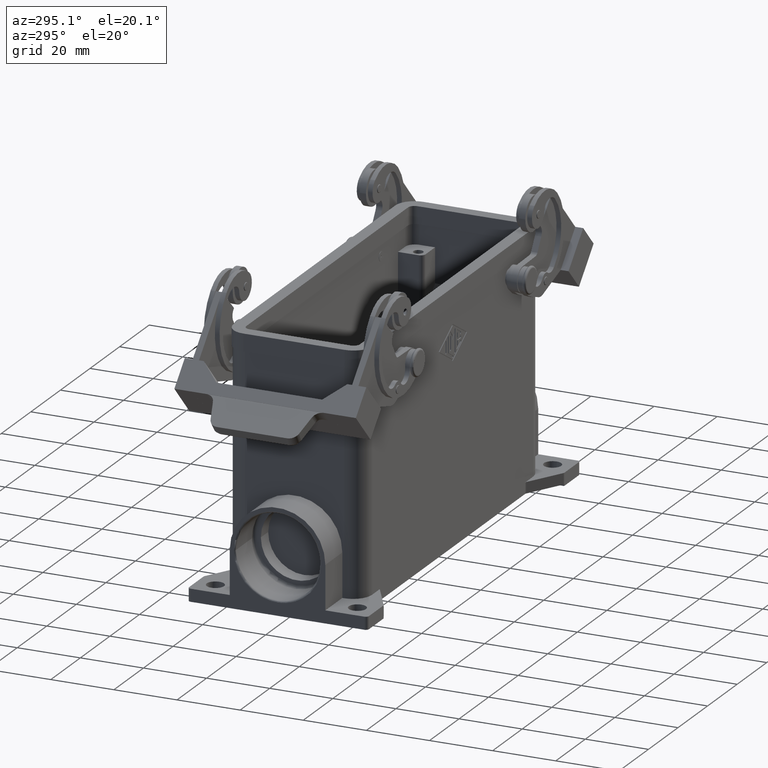
[diagram: clean part render]
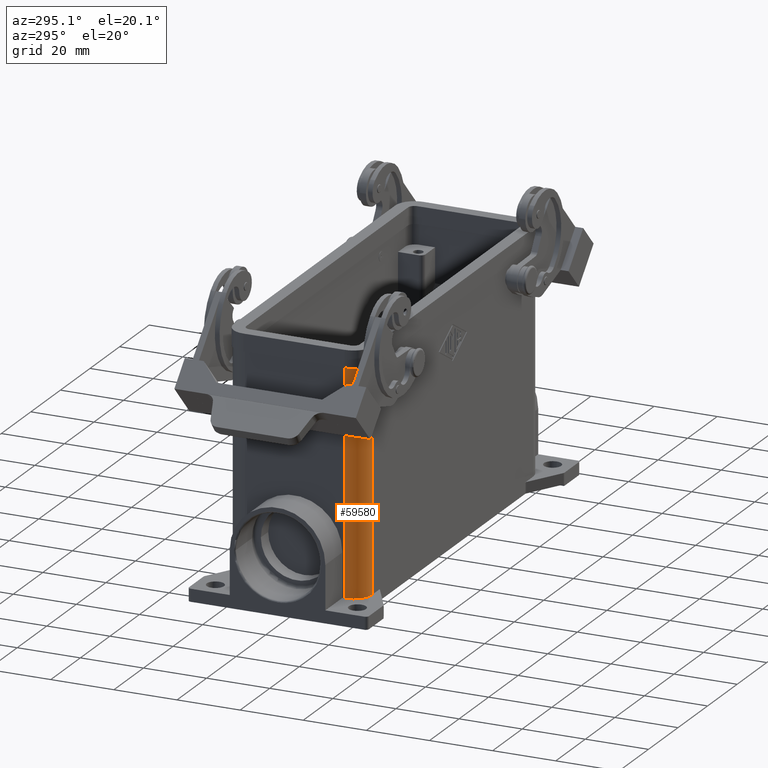
[diagram: same view with one face highlighted and labeled with its STEP entity id]
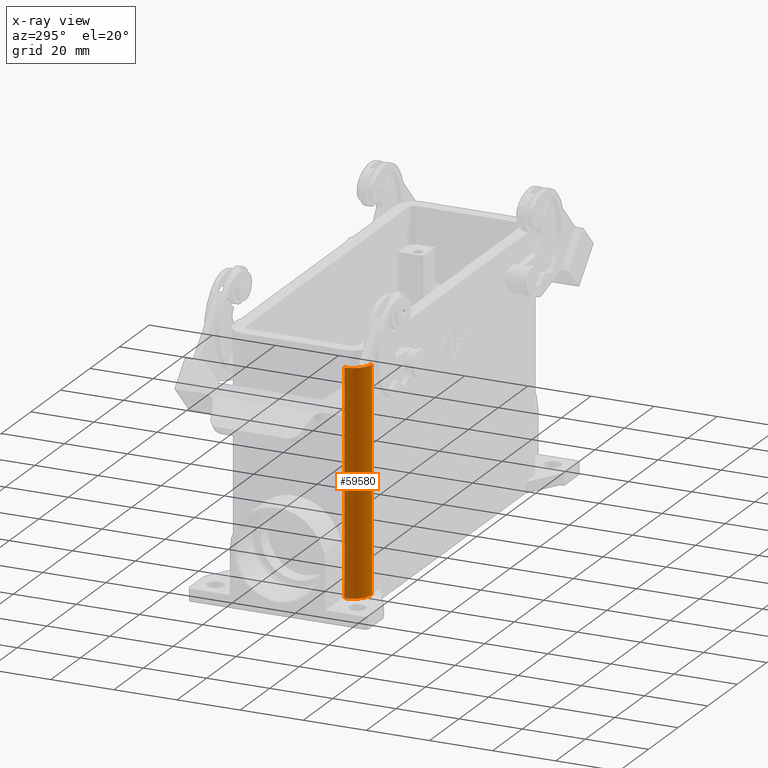
[diagram: x-ray of the same camera — body ghosted, the highlighted face saturated]
A machine part, auxiliary view. The second image highlights one B-rep face of the part: STEP entity #59580.
The next image is the same camera in x-ray: the body ghosted, the highlighted face saturated — about 0% of this face is hidden behind the body in this view.
In plain terms, the highlighted cylindrical surface (edge-blend (fillet) strip) has radius 6 mm, axis along (0, 0, 1).
Its self-contained STEP definition (entity closure, byte-faithful):
#59170=CARTESIAN_POINT('',(-54.5,-15.75,1.5));
#59180=DIRECTION('',(0.,0.,1.));
#59190=DIRECTION('',(1.,0.,0.));
#59200=AXIS2_PLACEMENT_3D('',#59170,#59180,#59190);
#59210=CYLINDRICAL_SURFACE('',#59200,6.);
#59220=CARTESIAN_POINT('',(-60.5,-15.75,23.5));
#59230=DIRECTION('',(0.,0.,-1.));
#59240=VECTOR('',#59230,70.5);
#59250=LINE('',#59220,#59240);
#59260=CARTESIAN_POINT('',(-60.5,-15.75,23.5));
#59270=VERTEX_POINT('',#59260);
#59280=CARTESIAN_POINT('',(-60.5,-15.75,-47.));
#59290=VERTEX_POINT('',#59280);
#59300=EDGE_CURVE('',#59270,#59290,#59250,.T.);
#59310=ORIENTED_EDGE('',*,*,#59300,.T.);
#59320=CARTESIAN_POINT('',(-54.5,-15.75,23.5));
#59330=DIRECTION('',(0.,0.,-1.));
#59340=DIRECTION('',(1.,0.,0.));
#59350=AXIS2_PLACEMENT_3D('',#59320,#59330,#59340);
#59360=CIRCLE('',#59350,6.);
#59370=CARTESIAN_POINT('',(-54.5,-21.75,23.5));
#59380=VERTEX_POINT('',#59370);
#59390=EDGE_CURVE('',#59380,#59270,#59360,.T.);
#59400=ORIENTED_EDGE('',*,*,#59390,.T.);
#59410=CARTESIAN_POINT('',(-54.5,-21.75,23.5));
#59420=DIRECTION('',(0.,0.,-1.));
#59430=VECTOR('',#59420,70.5);
#59440=LINE('',#59410,#59430);
#59450=CARTESIAN_POINT('',(-54.5,-21.75,-47.));
#59460=VERTEX_POINT('',#59450);
#59470=EDGE_CURVE('',#59380,#59460,#59440,.T.);
#59480=ORIENTED_EDGE('',*,*,#59470,.F.);
#59490=CARTESIAN_POINT('',(-54.5,-15.75,-47.));
#59500=DIRECTION('',(0.,0.,1.));
#59510=DIRECTION('',(1.,0.,0.));
#59520=AXIS2_PLACEMENT_3D('',#59490,#59500,#59510);
#59530=CIRCLE('',#59520,6.);
#59540=EDGE_CURVE('',#59290,#59460,#59530,.T.);
#59550=ORIENTED_EDGE('',*,*,#59540,.T.);
#59560=EDGE_LOOP('',(#59550,#59480,#59400,#59310));
#59570=FACE_OUTER_BOUND('',#59560,.T.);
#59580=ADVANCED_FACE('',(#59570),#59210,.T.);